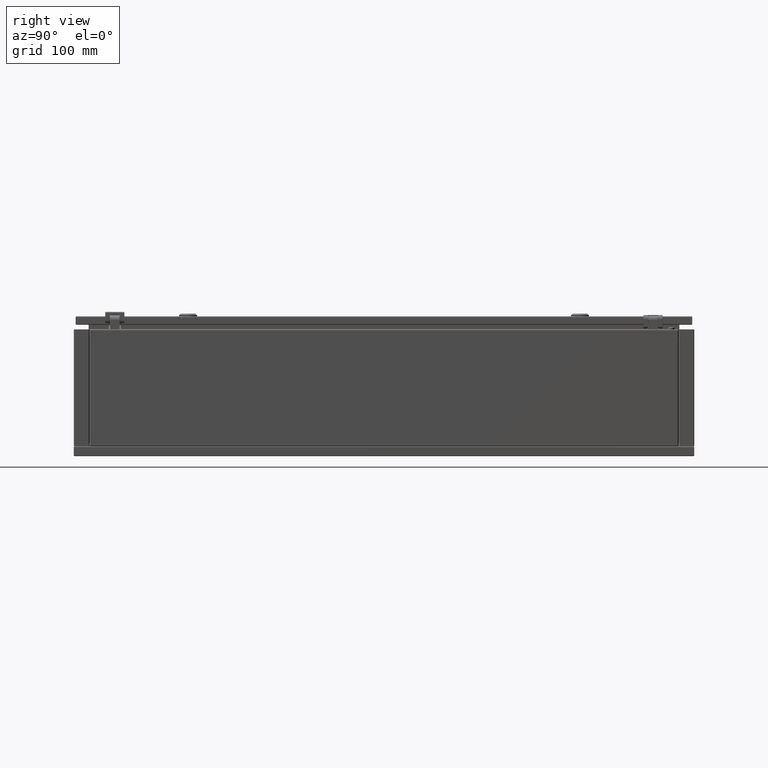
[diagram: clean part render]
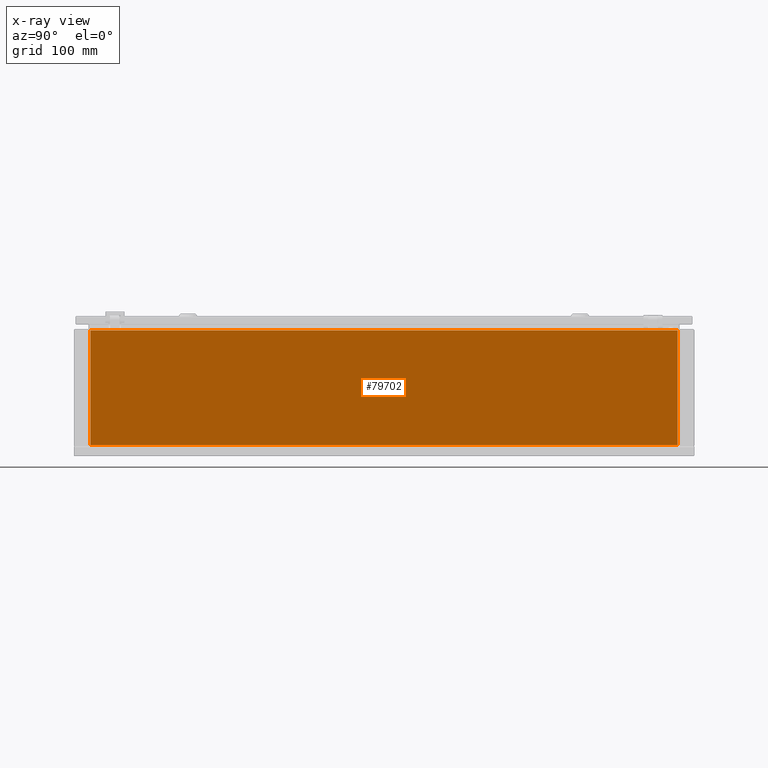
[diagram: x-ray — body ghosted, one internal face saturated and labeled with its STEP entity id]
A machine part, right view, then the same camera in x-ray: the body is ghosted and one INTERNAL B-rep face — a face not visible from any outside direction — is saturated and labeled: STEP entity #79702.
In plain terms, the highlighted planar face has unit normal (1, -0, -0).
Its self-contained STEP definition (entity closure, byte-faithful):
#665 = VERTEX_POINT ( 'NONE', #30565 ) ;
#1187 = ORIENTED_EDGE ( 'NONE', *, *, #45726, .T. ) ;
#1281 = EDGE_LOOP ( 'NONE', ( #95411, #1187, #60675, #87098 ) ) ;
#4110 = DIRECTION ( 'NONE',  ( 1.665334536937769800E-016, 1.000000000000000000, -1.318389841742363800E-016 ) ) ;
#6767 = LINE ( 'NONE', #44120, #61283 ) ;
#14312 = CARTESIAN_POINT ( 'NONE',  ( 274.0000000000000000, 449.2500000000099500, 15.50000000000299800 ) ) ;
#14755 = CARTESIAN_POINT ( 'NONE',  ( 274.0000000000000000, -449.2499999999905100, 191.5000000000030100 ) ) ;
#15829 = VERTEX_POINT ( 'NONE', #94882 ) ;
#15891 = LINE ( 'NONE', #26481, #46290 ) ;
#17151 = FACE_OUTER_BOUND ( 'NONE', #1281, .T. ) ;
#26481 = CARTESIAN_POINT ( 'NONE',  ( 274.0000000000000000, 450.7500000000100000, 191.5000000000030100 ) ) ;
#29918 = DIRECTION ( 'NONE',  ( -1.665334536937769800E-016, -1.000000000000000000, 1.318389841742363800E-016 ) ) ;
#30565 = CARTESIAN_POINT ( 'NONE',  ( 274.0000000000000000, 449.2500000000099500, 191.5000000000030100 ) ) ;
#34975 = DIRECTION ( 'NONE',  ( 1.000000000000000000, -1.665334536937775000E-016, -3.965082230804130600E-015 ) ) ;
#43107 = PLANE ( 'NONE',  #57092 ) ;
#44120 = CARTESIAN_POINT ( 'NONE',  ( 274.0000000000000000, -449.2499999999905100, 191.5000000000030100 ) ) ;
#45726 = EDGE_CURVE ( 'NONE', #94020, #665, #15891, .T. ) ;
#46290 = VECTOR ( 'NONE', #71896, 1000.000000000000000 ) ;
#47575 = DIRECTION ( 'NONE',  ( 3.954062174942385400E-015, 2.243978408070900000E-016, 1.000000000000000000 ) ) ;
#48772 = VERTEX_POINT ( 'NONE', #14312 ) ;
#50699 = EDGE_CURVE ( 'NONE', #48772, #665, #80515, .T. ) ;
#57092 = AXIS2_PLACEMENT_3D ( 'NONE', #81235, #34975, #4110 ) ;
#57166 = VECTOR ( 'NONE', #29918, 1000.000000000000000 ) ;
#60675 = ORIENTED_EDGE ( 'NONE', *, *, #50699, .F. ) ;
#61283 = VECTOR ( 'NONE', #82911, 1000.000000000000000 ) ;
#71896 = DIRECTION ( 'NONE',  ( 1.665334536937769800E-016, 1.000000000000000000, -1.318389841742363800E-016 ) ) ;
#72157 = EDGE_CURVE ( 'NONE', #94020, #15829, #6767, .T. ) ;
#74921 = CARTESIAN_POINT ( 'NONE',  ( 274.0000000000000000, 450.7500000000100000, 15.50000000000299800 ) ) ;
#77209 = CARTESIAN_POINT ( 'NONE',  ( 274.0000000000000000, 449.2500000000099500, 15.50000000000299800 ) ) ;
#79702 = ADVANCED_FACE ( 'NONE', ( #17151 ), #43107, .F. ) ;
#80515 = LINE ( 'NONE', #77209, #93807 ) ;
#81235 = CARTESIAN_POINT ( 'NONE',  ( 274.0000000000000000, 450.7500000000100000, 15.50000000000299800 ) ) ;
#82911 = DIRECTION ( 'NONE',  ( -3.954062174942385400E-015, -2.243978408070900000E-016, -1.000000000000000000 ) ) ;
#87098 = ORIENTED_EDGE ( 'NONE', *, *, #98820, .T. ) ;
#93807 = VECTOR ( 'NONE', #47575, 1000.000000000000000 ) ;
#94020 = VERTEX_POINT ( 'NONE', #14755 ) ;
#94882 = CARTESIAN_POINT ( 'NONE',  ( 274.0000000000000000, -449.2499999999905100, 15.50000000000310000 ) ) ;
#95411 = ORIENTED_EDGE ( 'NONE', *, *, #72157, .F. ) ;
#95764 = LINE ( 'NONE', #74921, #57166 ) ;
#98820 = EDGE_CURVE ( 'NONE', #48772, #15829, #95764, .T. ) ;